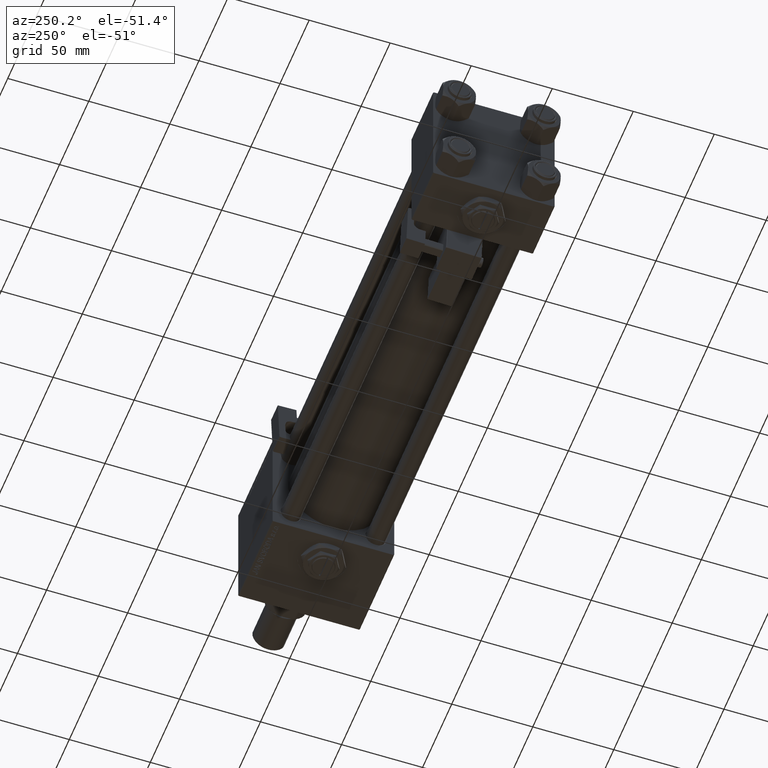
[diagram: clean part render]
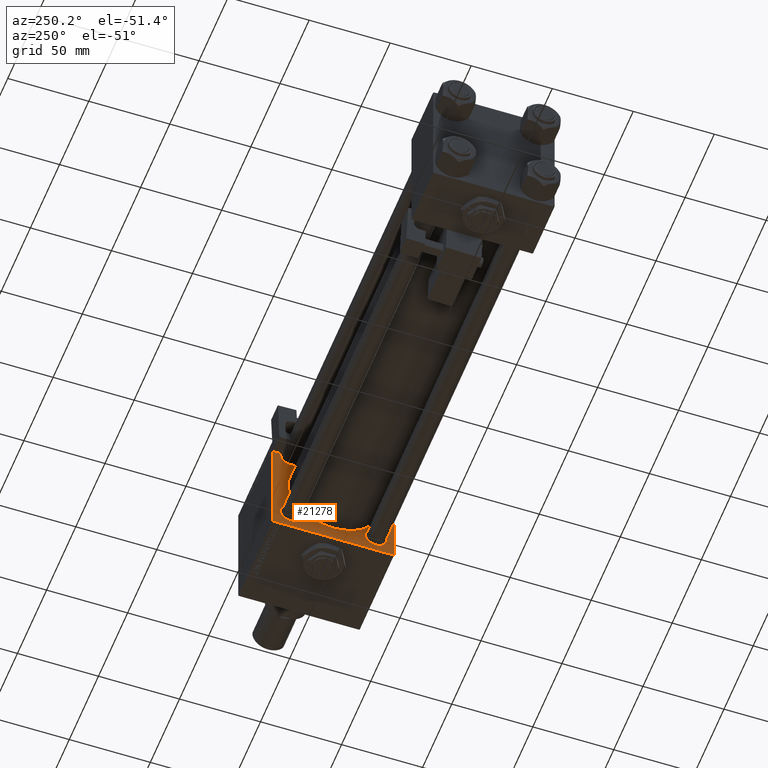
[diagram: same view with one face highlighted and labeled with its STEP entity id]
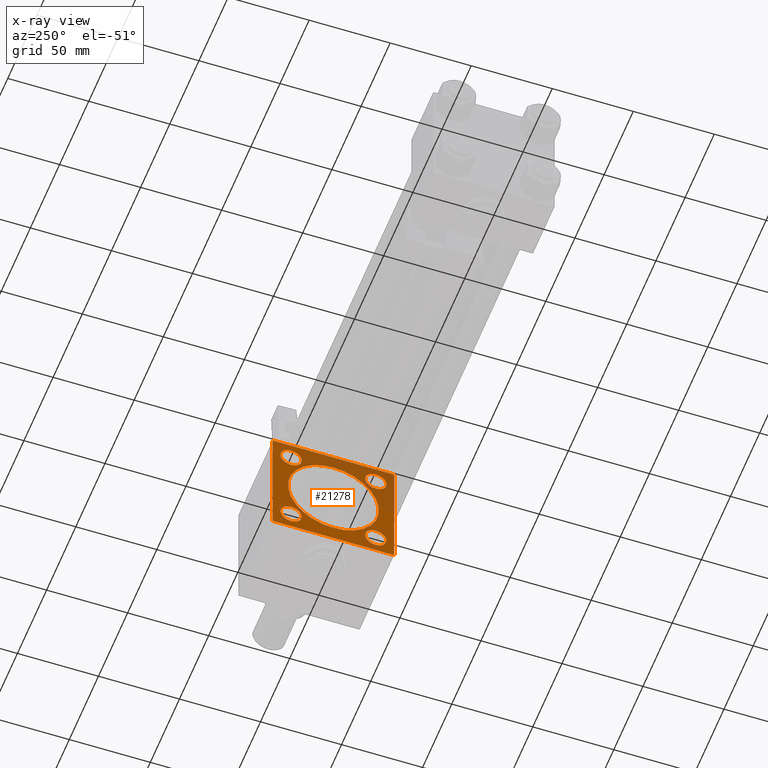
[diagram: x-ray of the same camera — body ghosted, the highlighted face saturated]
A machine part, auxiliary view. The second image highlights one B-rep face of the part: STEP entity #21278.
The next image is the same camera in x-ray: the body ghosted, the highlighted face saturated — about 31% of this face is hidden behind the body in this view.
In plain terms, the highlighted planar face has unit normal (-1, 0, 0).
Its self-contained STEP definition (entity closure, byte-faithful):
#166 = AXIS2_PLACEMENT_3D ( 'NONE', #5857, #14197, #18627 ) ;
#447 = CARTESIAN_POINT ( 'NONE',  ( 274.9999999999999432, -37.25000000000103739, -37.24999999999896971 ) ) ;
#1849 = DIRECTION ( 'NONE',  ( 1.000000000000000000, 0.000000000000000000, -0.000000000000000000 ) ) ;
#1920 = CARTESIAN_POINT ( 'NONE',  ( 274.9999999999999432, -2.602085213965210642E-15, 0.000000000000000000 ) ) ;
#2340 = LINE ( 'NONE', #44296, #22262 ) ;
#2364 = FACE_BOUND ( 'NONE', #35155, .T. ) ;
#2573 = DIRECTION ( 'NONE',  ( 0.000000000000000000, -9.251858538542972814E-17, -1.000000000000000000 ) ) ;
#2644 = DIRECTION ( 'NONE',  ( 0.000000000000000000, 0.000000000000000000, 1.000000000000000000 ) ) ;
#3129 = DIRECTION ( 'NONE',  ( 1.000000000000000000, 0.000000000000000000, -0.000000000000000000 ) ) ;
#3749 = CARTESIAN_POINT ( 'NONE',  ( 274.9999999999999432, 37.25000000000101608, 37.24999999999894840 ) ) ;
#5693 = DIRECTION ( 'NONE',  ( -0.000000000000000000, -0.7071067811865622277, -0.7071067811865328068 ) ) ;
#5857 = CARTESIAN_POINT ( 'NONE',  ( 274.9999999999999432, 26.14999999999999858, 26.15000000000000213 ) ) ;
#6532 = VERTEX_POINT ( 'NONE', #11769 ) ;
#6594 = EDGE_CURVE ( 'NONE', #26936, #41041, #43449, .T. ) ;
#7247 = CARTESIAN_POINT ( 'NONE',  ( 274.9999999999999432, 8.269258236473784371E-16, -28.00000000000000000 ) ) ;
#7602 = AXIS2_PLACEMENT_3D ( 'NONE', #8127, #28962, #37854 ) ;
#7820 = ORIENTED_EDGE ( 'NONE', *, *, #26900, .T. ) ;
#7847 = DIRECTION ( 'NONE',  ( 0.000000000000000000, -1.000000000000000000, 0.000000000000000000 ) ) ;
#8127 = CARTESIAN_POINT ( 'NONE',  ( 274.9999999999999432, 26.14999999999999858, -26.15000000000000213 ) ) ;
#9098 = ORIENTED_EDGE ( 'NONE', *, *, #16320, .F. ) ;
#9433 = AXIS2_PLACEMENT_3D ( 'NONE', #44631, #1849, #18516 ) ;
#9479 = ORIENTED_EDGE ( 'NONE', *, *, #42586, .T. ) ;
#9719 = CIRCLE ( 'NONE', #33799, 28.00000000000000000 ) ;
#9996 = EDGE_CURVE ( 'NONE', #22721, #11408, #9719, .T. ) ;
#10561 = ORIENTED_EDGE ( 'NONE', *, *, #26611, .T. ) ;
#10716 = FACE_BOUND ( 'NONE', #47344, .T. ) ;
#10727 = VECTOR ( 'NONE', #37064, 1000.000000000000000 ) ;
#10782 = VERTEX_POINT ( 'NONE', #13429 ) ;
#11382 = CARTESIAN_POINT ( 'NONE',  ( 274.9999999999999432, 26.14999999999999858, 32.65000000000001990 ) ) ;
#11408 = VERTEX_POINT ( 'NONE', #48187 ) ;
#11769 = CARTESIAN_POINT ( 'NONE',  ( 274.9999999999999432, -37.00000000000000000, 37.49999999999997868 ) ) ;
#12097 = DIRECTION ( 'NONE',  ( 1.000000000000000000, 0.000000000000000000, -0.000000000000000000 ) ) ;
#12176 = CARTESIAN_POINT ( 'NONE',  ( 274.9999999999999432, -26.14999999999999147, 26.15000000000000924 ) ) ;
#12228 = EDGE_CURVE ( 'NONE', #45315, #15007, #2340, .T. ) ;
#12358 = EDGE_CURVE ( 'NONE', #51378, #45315, #20116, .T. ) ;
#12430 = CIRCLE ( 'NONE', #37263, 6.500000000000015987 ) ;
#12577 = DIRECTION ( 'NONE',  ( 1.000000000000000000, 0.000000000000000000, -0.000000000000000000 ) ) ;
#12581 = VERTEX_POINT ( 'NONE', #39783 ) ;
#12702 = VECTOR ( 'NONE', #2573, 1000.000000000000000 ) ;
#12869 = AXIS2_PLACEMENT_3D ( 'NONE', #12176, #54643, #46055 ) ;
#13429 = CARTESIAN_POINT ( 'NONE',  ( 274.9999999999999432, -37.50000000000000711, -36.99999999999997868 ) ) ;
#14197 = DIRECTION ( 'NONE',  ( 1.000000000000000000, 0.000000000000000000, -0.000000000000000000 ) ) ;
#14315 = ORIENTED_EDGE ( 'NONE', *, *, #6594, .T. ) ;
#14516 = ORIENTED_EDGE ( 'NONE', *, *, #12358, .T. ) ;
#14635 = EDGE_CURVE ( 'NONE', #41041, #26936, #45406, .T. ) ;
#14714 = DIRECTION ( 'NONE',  ( 0.000000000000000000, 0.000000000000000000, -1.000000000000000000 ) ) ;
#14978 = ORIENTED_EDGE ( 'NONE', *, *, #12228, .T. ) ;
#15007 = VERTEX_POINT ( 'NONE', #19624 ) ;
#15630 = CIRCLE ( 'NONE', #9433, 6.500000000000015987 ) ;
#15866 = DIRECTION ( 'NONE',  ( 1.000000000000000000, 0.000000000000000000, 0.000000000000000000 ) ) ;
#16320 = EDGE_CURVE ( 'NONE', #46040, #6532, #44203, .T. ) ;
#17317 = CARTESIAN_POINT ( 'NONE',  ( 274.9999999999999432, -26.14999999999999147, -19.64999999999999503 ) ) ;
#17535 = CARTESIAN_POINT ( 'NONE',  ( 274.9999999999999432, 26.14999999999999858, -32.65000000000001990 ) ) ;
#18051 = ORIENTED_EDGE ( 'NONE', *, *, #44934, .T. ) ;
#18516 = DIRECTION ( 'NONE',  ( 0.000000000000000000, 0.000000000000000000, 1.000000000000000000 ) ) ;
#18578 = VERTEX_POINT ( 'NONE', #37834 ) ;
#18627 = DIRECTION ( 'NONE',  ( 0.000000000000000000, 0.000000000000000000, 1.000000000000000000 ) ) ;
#18701 = VERTEX_POINT ( 'NONE', #17535 ) ;
#18748 = ORIENTED_EDGE ( 'NONE', *, *, #22503, .T. ) ;
#18874 = DIRECTION ( 'NONE',  ( 1.000000000000000000, 0.000000000000000000, 0.000000000000000000 ) ) ;
#19446 = ORIENTED_EDGE ( 'NONE', *, *, #28036, .T. ) ;
#19624 = CARTESIAN_POINT ( 'NONE',  ( 274.9999999999999432, 36.99999999999997158, -37.50000000000000000 ) ) ;
#20116 = LINE ( 'NONE', #28981, #10727 ) ;
#20298 = CARTESIAN_POINT ( 'NONE',  ( 274.9999999999999432, 26.14999999999999858, 19.64999999999999147 ) ) ;
#21242 = AXIS2_PLACEMENT_3D ( 'NONE', #37658, #12097, #29035 ) ;
#21278 = ADVANCED_FACE ( 'NONE', ( #31827, #2364, #54000, #10716, #45405, #41258 ), #53181, .T. ) ;
#22262 = VECTOR ( 'NONE', #5693, 1000.000000000000000 ) ;
#22393 = DIRECTION ( 'NONE',  ( 1.000000000000000000, 0.000000000000000000, -0.000000000000000000 ) ) ;
#22503 = EDGE_CURVE ( 'NONE', #18701, #51748, #25287, .T. ) ;
#22721 = VERTEX_POINT ( 'NONE', #7247 ) ;
#23370 = DIRECTION ( 'NONE',  ( 0.000000000000000000, -1.000000000000000000, -1.850371707708594316E-16 ) ) ;
#23988 = LINE ( 'NONE', #25063, #52824 ) ;
#24051 = EDGE_LOOP ( 'NONE', ( #50790, #18748 ) ) ;
#24568 = VECTOR ( 'NONE', #28318, 1000.000000000000000 ) ;
#24671 = ORIENTED_EDGE ( 'NONE', *, *, #14635, .T. ) ;
#24791 = AXIS2_PLACEMENT_3D ( 'NONE', #42022, #12577, #46448 ) ;
#24958 = LINE ( 'NONE', #49154, #24568 ) ;
#25050 = ORIENTED_EDGE ( 'NONE', *, *, #53122, .F. ) ;
#25063 = CARTESIAN_POINT ( 'NONE',  ( 274.9999999999999432, 37.50000000000000000, -37.50000000000000000 ) ) ;
#25287 = CIRCLE ( 'NONE', #32410, 6.500000000000015987 ) ;
#25461 = VERTEX_POINT ( 'NONE', #43159 ) ;
#25811 = ORIENTED_EDGE ( 'NONE', *, *, #9996, .T. ) ;
#26269 = CARTESIAN_POINT ( 'NONE',  ( 274.9999999999999432, 26.14999999999999858, -19.64999999999998792 ) ) ;
#26597 = EDGE_CURVE ( 'NONE', #51748, #18701, #45741, .T. ) ;
#26611 = EDGE_CURVE ( 'NONE', #15007, #43030, #23988, .T. ) ;
#26900 = EDGE_CURVE ( 'NONE', #11408, #22721, #40447, .T. ) ;
#26936 = VERTEX_POINT ( 'NONE', #20298 ) ;
#27648 = DIRECTION ( 'NONE',  ( 0.000000000000000000, -0.7071067811865279218, 0.7071067811865671127 ) ) ;
#28036 = EDGE_CURVE ( 'NONE', #18578, #12581, #15630, .T. ) ;
#28318 = DIRECTION ( 'NONE',  ( -0.000000000000000000, 0.7071067811865671127, 0.7071067811865279218 ) ) ;
#28962 = DIRECTION ( 'NONE',  ( 1.000000000000000000, 0.000000000000000000, -0.000000000000000000 ) ) ;
#28981 = CARTESIAN_POINT ( 'NONE',  ( 274.9999999999999432, 37.50000000000000000, 37.49999999999999289 ) ) ;
#29035 = DIRECTION ( 'NONE',  ( 0.000000000000000000, 0.000000000000000000, 1.000000000000000000 ) ) ;
#29452 = VERTEX_POINT ( 'NONE', #17317 ) ;
#30962 = EDGE_LOOP ( 'NONE', ( #10561, #37454, #25050, #46533, #9098, #48125, #14516, #14978 ) ) ;
#31276 = DIRECTION ( 'NONE',  ( 0.000000000000000000, 0.000000000000000000, 1.000000000000000000 ) ) ;
#31564 = AXIS2_PLACEMENT_3D ( 'NONE', #37249, #15866, #36440 ) ;
#31827 = FACE_BOUND ( 'NONE', #39089, .T. ) ;
#32154 = EDGE_CURVE ( 'NONE', #12581, #18578, #51126, .T. ) ;
#32310 = LINE ( 'NONE', #36205, #12702 ) ;
#32410 = AXIS2_PLACEMENT_3D ( 'NONE', #41194, #3129, #53396 ) ;
#32644 = CARTESIAN_POINT ( 'NONE',  ( 274.9999999999999432, 0.000000000000000000, 0.000000000000000000 ) ) ;
#33240 = VERTEX_POINT ( 'NONE', #37689 ) ;
#33469 = LINE ( 'NONE', #3749, #35468 ) ;
#33635 = CIRCLE ( 'NONE', #21242, 6.500000000000015987 ) ;
#33799 = AXIS2_PLACEMENT_3D ( 'NONE', #1920, #18874, #14714 ) ;
#35155 = EDGE_LOOP ( 'NONE', ( #24671, #14315 ) ) ;
#35468 = VECTOR ( 'NONE', #45423, 1000.000000000000000 ) ;
#35670 = CARTESIAN_POINT ( 'NONE',  ( 274.9999999999999432, -37.00000000000001421, -37.50000000000000000 ) ) ;
#36205 = CARTESIAN_POINT ( 'NONE',  ( 274.9999999999999432, -37.50000000000000000, 37.49999999999997868 ) ) ;
#36287 = EDGE_CURVE ( 'NONE', #25461, #6532, #24958, .T. ) ;
#36440 = DIRECTION ( 'NONE',  ( 0.000000000000000000, 0.000000000000000000, -1.000000000000000000 ) ) ;
#36630 = VECTOR ( 'NONE', #23370, 1000.000000000000000 ) ;
#37064 = DIRECTION ( 'NONE',  ( 0.000000000000000000, 0.000000000000000000, -1.000000000000000000 ) ) ;
#37249 = CARTESIAN_POINT ( 'NONE',  ( 274.9999999999999432, -2.602085213965210642E-15, 0.000000000000000000 ) ) ;
#37263 = AXIS2_PLACEMENT_3D ( 'NONE', #39603, #22393, #31276 ) ;
#37454 = ORIENTED_EDGE ( 'NONE', *, *, #49256, .T. ) ;
#37658 = CARTESIAN_POINT ( 'NONE',  ( 274.9999999999999432, -26.14999999999999147, -26.15000000000000924 ) ) ;
#37689 = CARTESIAN_POINT ( 'NONE',  ( 274.9999999999999432, -26.14999999999999147, -32.65000000000002700 ) ) ;
#37772 = ORIENTED_EDGE ( 'NONE', *, *, #32154, .T. ) ;
#37834 = CARTESIAN_POINT ( 'NONE',  ( 274.9999999999999432, -26.14999999999999147, 19.64999999999999147 ) ) ;
#37854 = DIRECTION ( 'NONE',  ( 0.000000000000000000, 0.000000000000000000, 1.000000000000000000 ) ) ;
#38301 = CARTESIAN_POINT ( 'NONE',  ( 274.9999999999999432, 37.50000000000000000, 36.99999999999996447 ) ) ;
#38514 = LINE ( 'NONE', #447, #47981 ) ;
#39089 = EDGE_LOOP ( 'NONE', ( #37772, #19446 ) ) ;
#39324 = EDGE_LOOP ( 'NONE', ( #7820, #25811 ) ) ;
#39603 = CARTESIAN_POINT ( 'NONE',  ( 274.9999999999999432, -26.14999999999999147, -26.15000000000000924 ) ) ;
#39783 = CARTESIAN_POINT ( 'NONE',  ( 274.9999999999999432, -26.14999999999999147, 32.65000000000003411 ) ) ;
#40447 = CIRCLE ( 'NONE', #31564, 28.00000000000000000 ) ;
#41041 = VERTEX_POINT ( 'NONE', #11382 ) ;
#41194 = CARTESIAN_POINT ( 'NONE',  ( 274.9999999999999432, 26.14999999999999858, -26.15000000000000213 ) ) ;
#41258 = FACE_OUTER_BOUND ( 'NONE', #30962, .T. ) ;
#42022 = CARTESIAN_POINT ( 'NONE',  ( 274.9999999999999432, 26.14999999999999858, 26.15000000000000213 ) ) ;
#42586 = EDGE_CURVE ( 'NONE', #29452, #33240, #12430, .T. ) ;
#42931 = EDGE_CURVE ( 'NONE', #46040, #51378, #33469, .T. ) ;
#43030 = VERTEX_POINT ( 'NONE', #35670 ) ;
#43159 = CARTESIAN_POINT ( 'NONE',  ( 274.9999999999999432, -37.50000000000000000, 37.00000000000000711 ) ) ;
#43449 = CIRCLE ( 'NONE', #24791, 6.500000000000008882 ) ;
#44203 = LINE ( 'NONE', #44493, #36630 ) ;
#44296 = CARTESIAN_POINT ( 'NONE',  ( 274.9999999999999432, 37.24999999999921130, -37.25000000000076739 ) ) ;
#44493 = CARTESIAN_POINT ( 'NONE',  ( 274.9999999999999432, 37.50000000000000000, 37.49999999999999289 ) ) ;
#44631 = CARTESIAN_POINT ( 'NONE',  ( 274.9999999999999432, -26.14999999999999147, 26.15000000000000924 ) ) ;
#44934 = EDGE_CURVE ( 'NONE', #33240, #29452, #33635, .T. ) ;
#45315 = VERTEX_POINT ( 'NONE', #48719 ) ;
#45405 = FACE_BOUND ( 'NONE', #39324, .T. ) ;
#45406 = CIRCLE ( 'NONE', #166, 6.500000000000008882 ) ;
#45423 = DIRECTION ( 'NONE',  ( 0.000000000000000000, 0.7071067811865279218, -0.7071067811865672237 ) ) ;
#45741 = CIRCLE ( 'NONE', #7602, 6.500000000000015987 ) ;
#46040 = VERTEX_POINT ( 'NONE', #53648 ) ;
#46055 = DIRECTION ( 'NONE',  ( 0.000000000000000000, 0.000000000000000000, 1.000000000000000000 ) ) ;
#46448 = DIRECTION ( 'NONE',  ( 0.000000000000000000, 0.000000000000000000, 1.000000000000000000 ) ) ;
#46533 = ORIENTED_EDGE ( 'NONE', *, *, #36287, .T. ) ;
#46536 = AXIS2_PLACEMENT_3D ( 'NONE', #32644, #48757, #2644 ) ;
#47344 = EDGE_LOOP ( 'NONE', ( #9479, #18051 ) ) ;
#47981 = VECTOR ( 'NONE', #27648, 1000.000000000000000 ) ;
#48125 = ORIENTED_EDGE ( 'NONE', *, *, #42931, .T. ) ;
#48187 = CARTESIAN_POINT ( 'NONE',  ( 274.9999999999999432, -2.602085213965210642E-15, 28.00000000000000000 ) ) ;
#48719 = CARTESIAN_POINT ( 'NONE',  ( 274.9999999999999432, 37.50000000000000000, -36.99999999999999289 ) ) ;
#48757 = DIRECTION ( 'NONE',  ( -1.000000000000000000, -0.000000000000000000, 0.000000000000000000 ) ) ;
#49154 = CARTESIAN_POINT ( 'NONE',  ( 274.9999999999999432, -37.24999999999896261, 37.25000000000102318 ) ) ;
#49256 = EDGE_CURVE ( 'NONE', #43030, #10782, #38514, .T. ) ;
#50790 = ORIENTED_EDGE ( 'NONE', *, *, #26597, .T. ) ;
#51126 = CIRCLE ( 'NONE', #12869, 6.500000000000015987 ) ;
#51378 = VERTEX_POINT ( 'NONE', #38301 ) ;
#51748 = VERTEX_POINT ( 'NONE', #26269 ) ;
#52824 = VECTOR ( 'NONE', #7847, 1000.000000000000000 ) ;
#53122 = EDGE_CURVE ( 'NONE', #25461, #10782, #32310, .T. ) ;
#53181 = PLANE ( 'NONE',  #46536 ) ;
#53396 = DIRECTION ( 'NONE',  ( 0.000000000000000000, 0.000000000000000000, 1.000000000000000000 ) ) ;
#53648 = CARTESIAN_POINT ( 'NONE',  ( 274.9999999999999432, 37.00000000000000000, 37.49999999999999289 ) ) ;
#54000 = FACE_BOUND ( 'NONE', #24051, .T. ) ;
#54643 = DIRECTION ( 'NONE',  ( 1.000000000000000000, 0.000000000000000000, -0.000000000000000000 ) ) ;